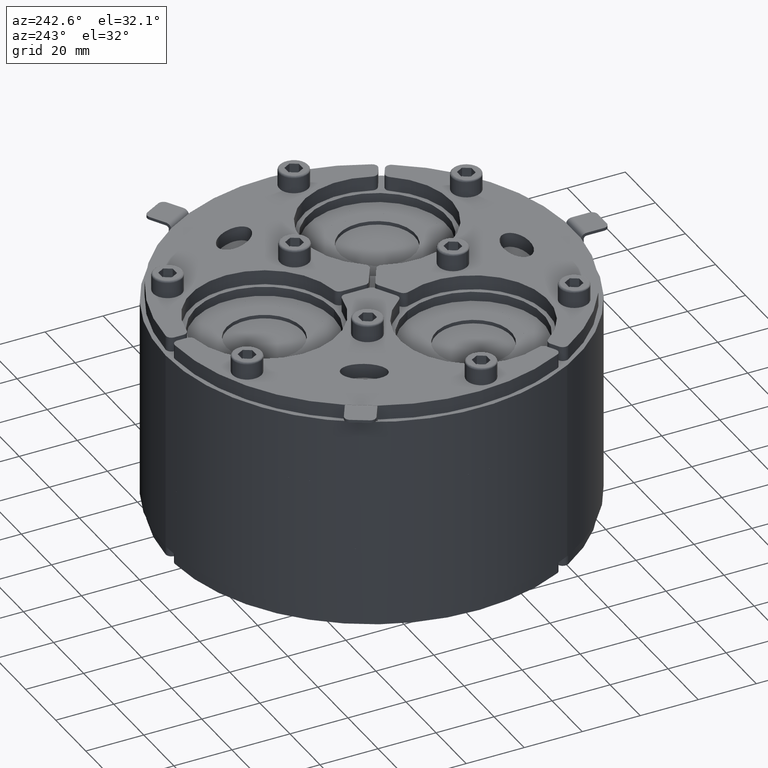
[diagram: clean part render]
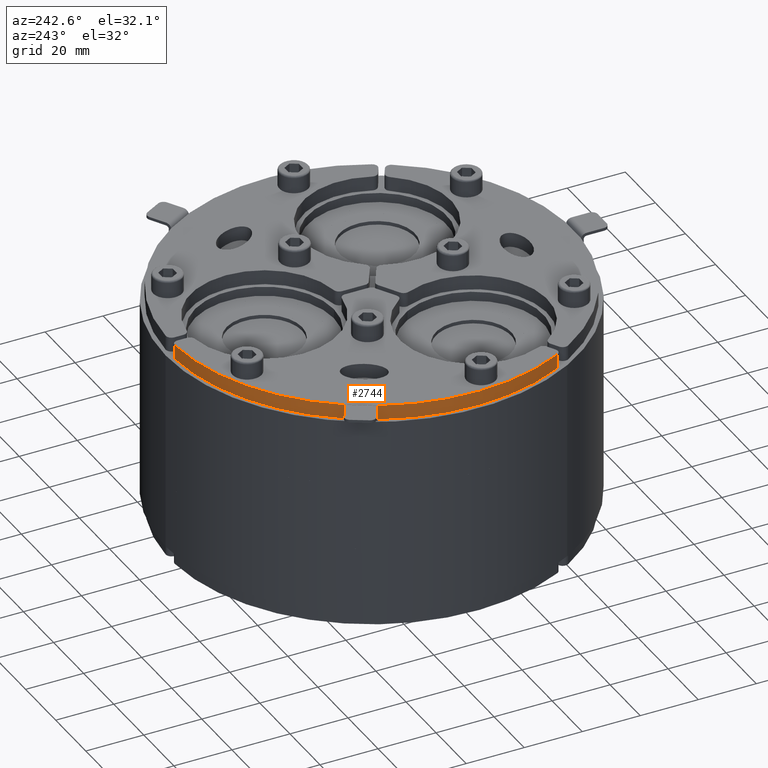
[diagram: same view with one face highlighted and labeled with its STEP entity id]
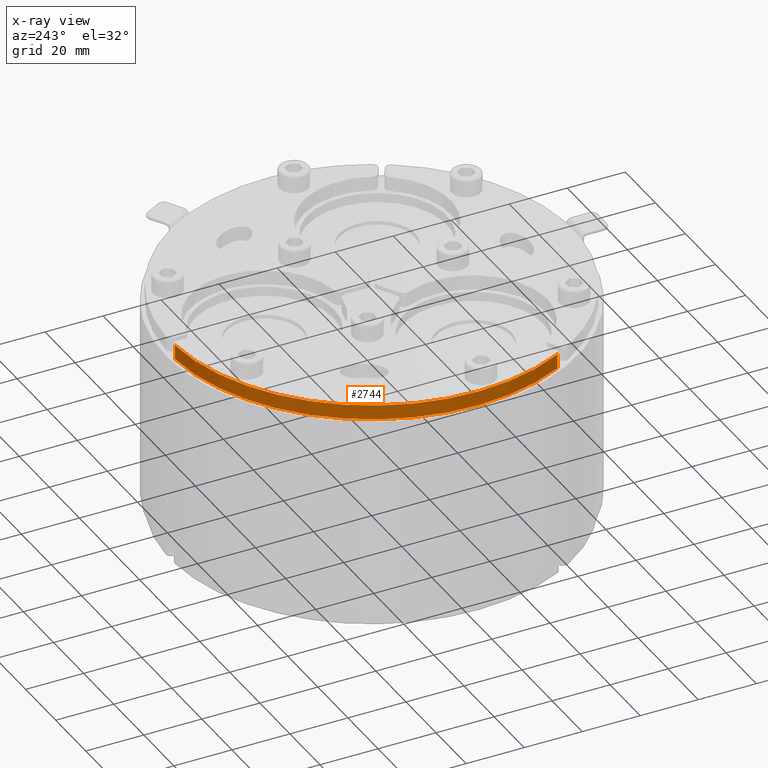
[diagram: x-ray of the same camera — body ghosted, the highlighted face saturated]
A machine part, auxiliary view. The second image highlights one B-rep face of the part: STEP entity #2744.
The next image is the same camera in x-ray: the body ghosted, the highlighted face saturated — about 0% of this face is hidden behind the body in this view.
In plain terms, the highlighted cylindrical surface (partial cylindrical patch) has radius 69.5 mm, axis along (0, -0, -1).
Its self-contained STEP definition (entity closure, byte-faithful):
#424=FACE_OUTER_BOUND('',#599,.T.);
#599=EDGE_LOOP('',(#2249,#2250,#2251,#2252));
#789=LINE('',#4638,#1011);
#808=LINE('',#4717,#1030);
#1011=VECTOR('',#3746,10.);
#1030=VECTOR('',#3829,10.);
#1192=CIRCLE('',#3183,69.5);
#1211=CIRCLE('',#3213,69.5);
#1369=VERTEX_POINT('',#4635);
#1370=VERTEX_POINT('',#4637);
#1374=VERTEX_POINT('',#4649);
#1397=VERTEX_POINT('',#4713);
#1665=EDGE_CURVE('',#1369,#1370,#789,.T.);
#1671=EDGE_CURVE('',#1370,#1374,#1192,.F.);
#1705=EDGE_CURVE('',#1374,#1397,#808,.T.);
#1706=EDGE_CURVE('',#1397,#1369,#1211,.T.);
#2249=ORIENTED_EDGE('',*,*,#1665,.F.);
#2250=ORIENTED_EDGE('',*,*,#1706,.F.);
#2251=ORIENTED_EDGE('',*,*,#1705,.F.);
#2252=ORIENTED_EDGE('',*,*,#1671,.F.);
#2632=CYLINDRICAL_SURFACE('',#3212,69.5);
#2744=ADVANCED_FACE('',(#424),#2632,.T.);
#3183=AXIS2_PLACEMENT_3D('',#4650,#3757,#3758);
#3212=AXIS2_PLACEMENT_3D('',#4718,#3830,#3831);
#3213=AXIS2_PLACEMENT_3D('',#4719,#3832,#3833);
#3746=DIRECTION('',(0.,0.,1.));
#3757=DIRECTION('center_axis',(0.,0.,-1.));
#3758=DIRECTION('ref_axis',(1.,0.,0.));
#3829=DIRECTION('',(0.,0.,-1.));
#3830=DIRECTION('center_axis',(0.,0.,-1.));
#3831=DIRECTION('ref_axis',(-0.866025403784438,0.5,0.));
#3832=DIRECTION('center_axis',(0.,0.,-1.));
#3833=DIRECTION('ref_axis',(1.,0.,0.));
#4635=CARTESIAN_POINT('',(-3.08888888888889,69.4313240938994,-5.));
#4637=CARTESIAN_POINT('',(-3.08888888888889,69.4313240938994,0.));
#4638=CARTESIAN_POINT('',(-3.08888888888889,69.4313240938994,0.));
#4649=CARTESIAN_POINT('',(-61.6737349281519,-32.0406057997044,0.));
#4650=CARTESIAN_POINT('Origin',(0.,0.,0.));
#4713=CARTESIAN_POINT('',(-61.6737349281519,-32.0406057997044,-5.));
#4717=CARTESIAN_POINT('',(-61.6737349281519,-32.0406057997044,0.));
#4718=CARTESIAN_POINT('Origin',(0.,0.,0.));
#4719=CARTESIAN_POINT('Origin',(0.,0.,-5.));